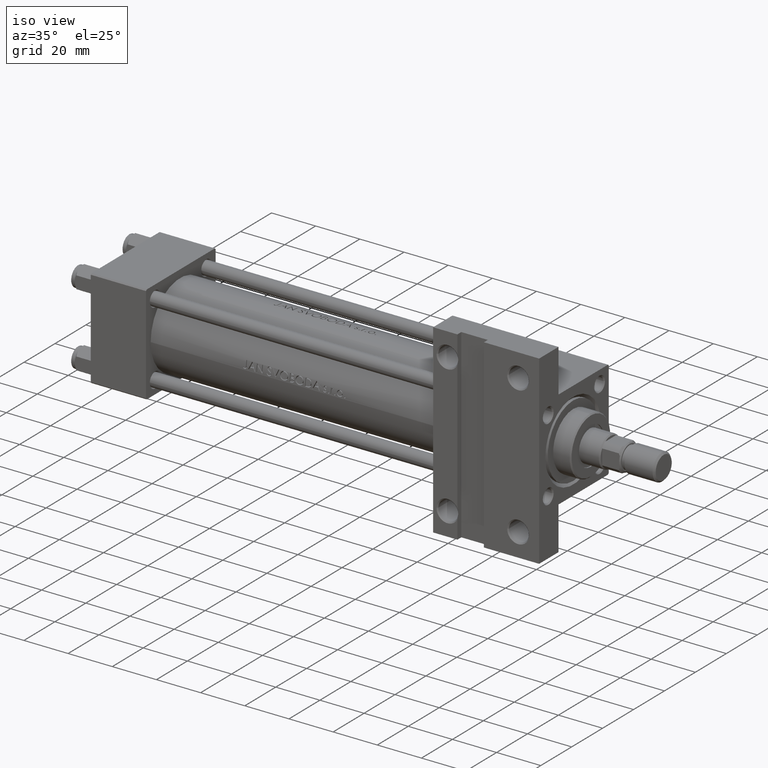
[diagram: clean part render]
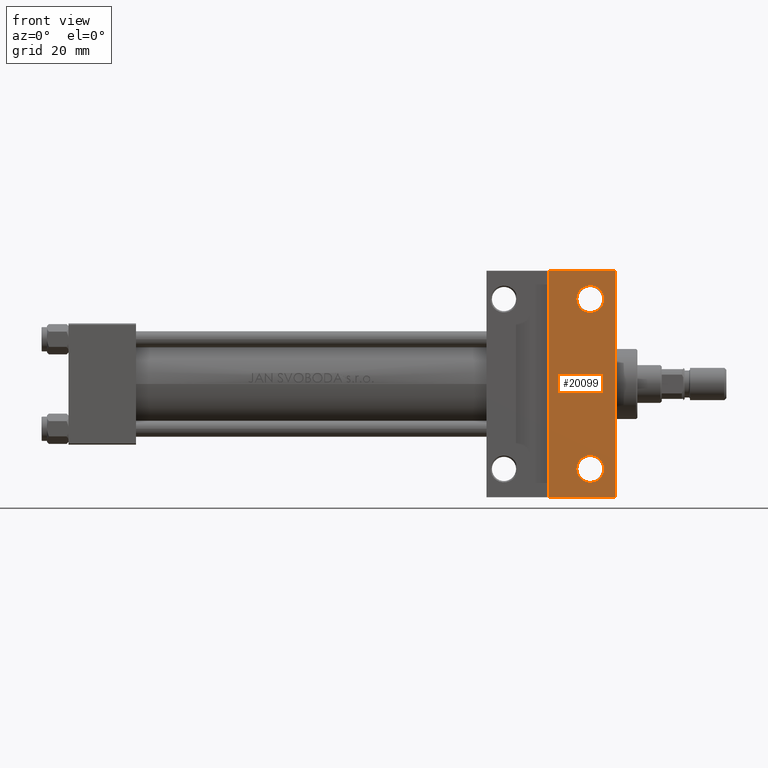
[diagram: tour spotlight — one face highlighted and labeled with its STEP entity id]
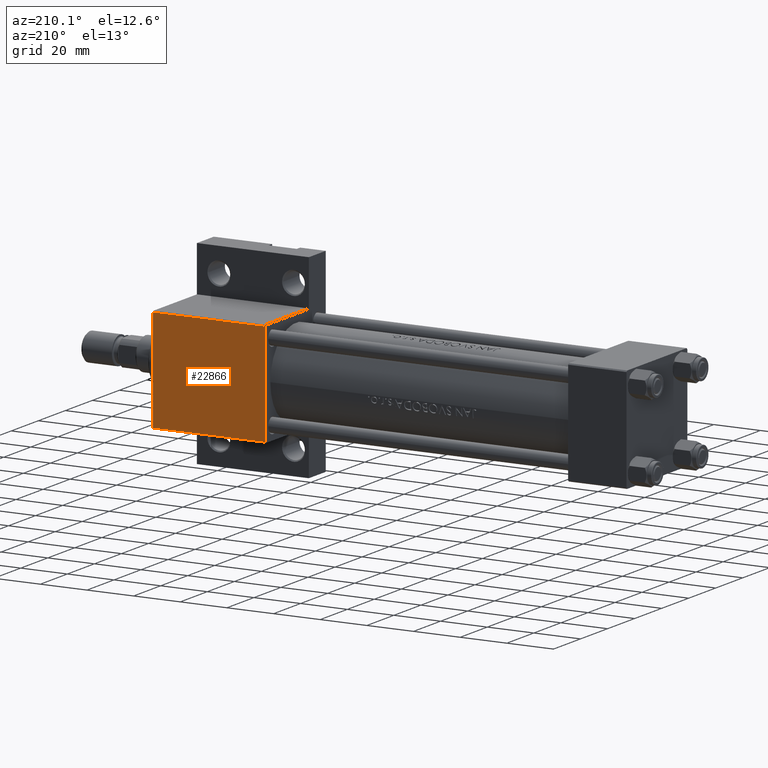
[diagram: tour spotlight — one face highlighted and labeled with its STEP entity id]
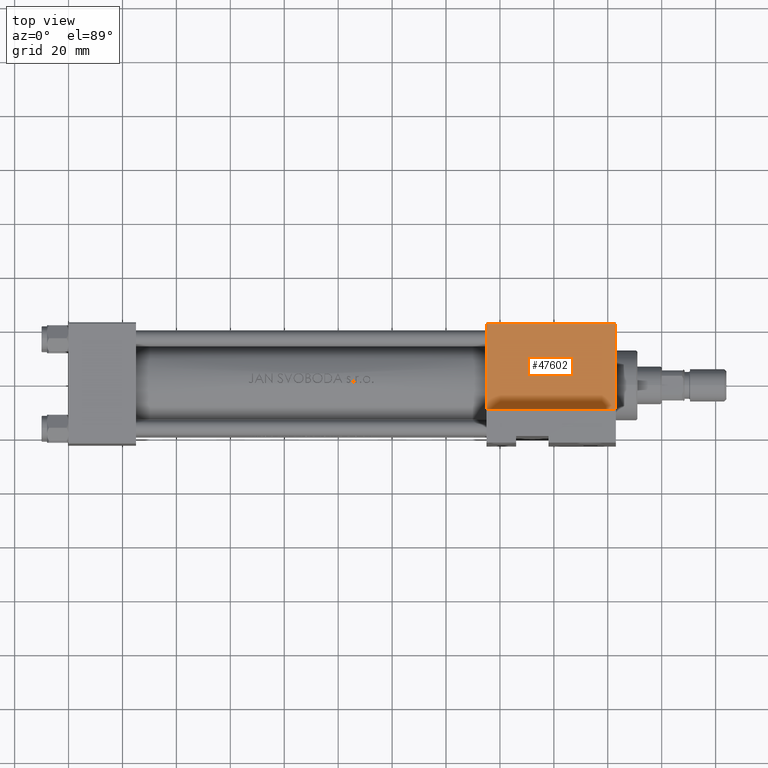
[diagram: tour spotlight — one face highlighted and labeled with its STEP entity id]
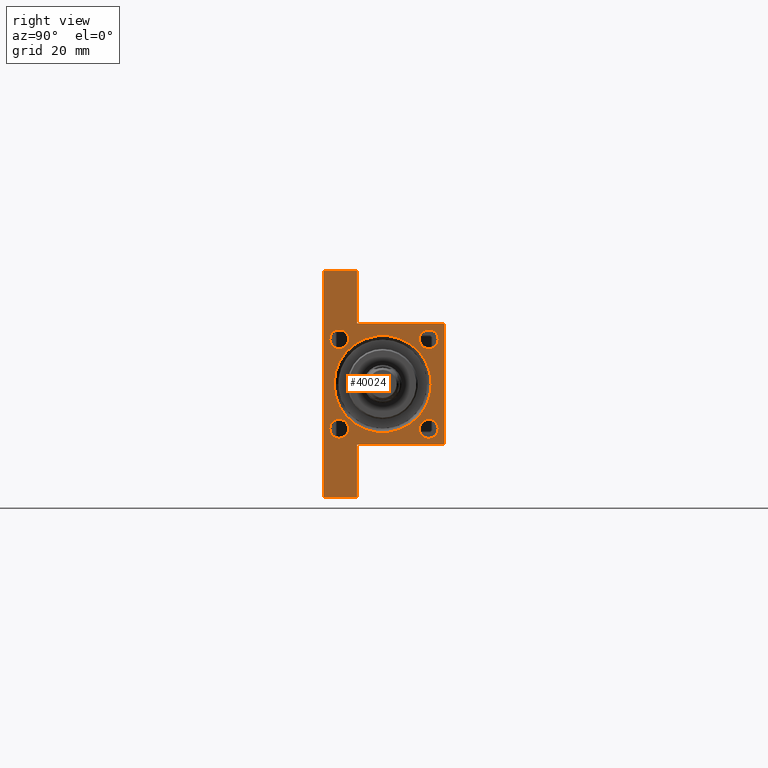
[diagram: tour spotlight — one face highlighted and labeled with its STEP entity id]
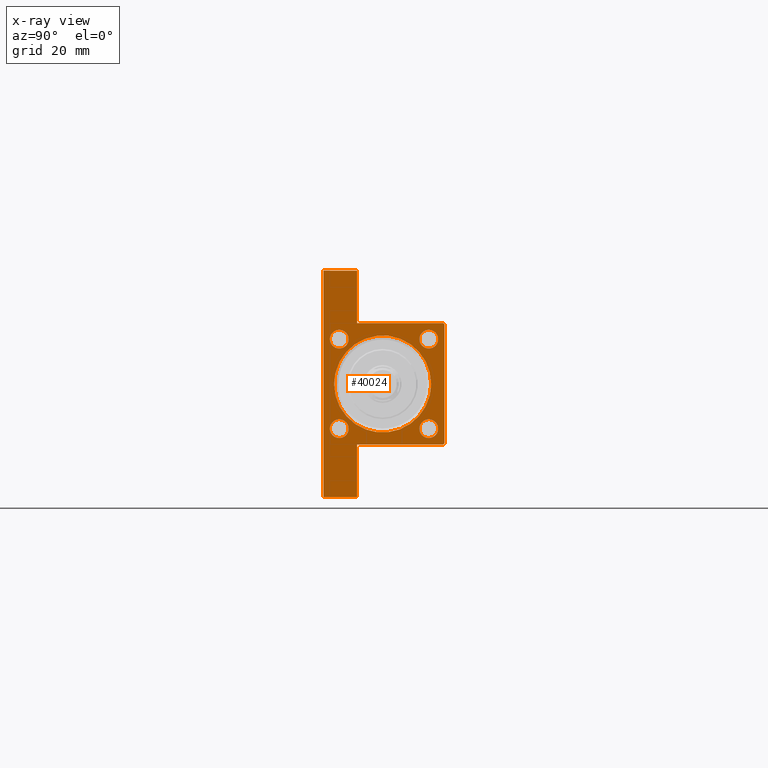
[diagram: x-ray of the same camera — body ghosted, this tour face saturated]
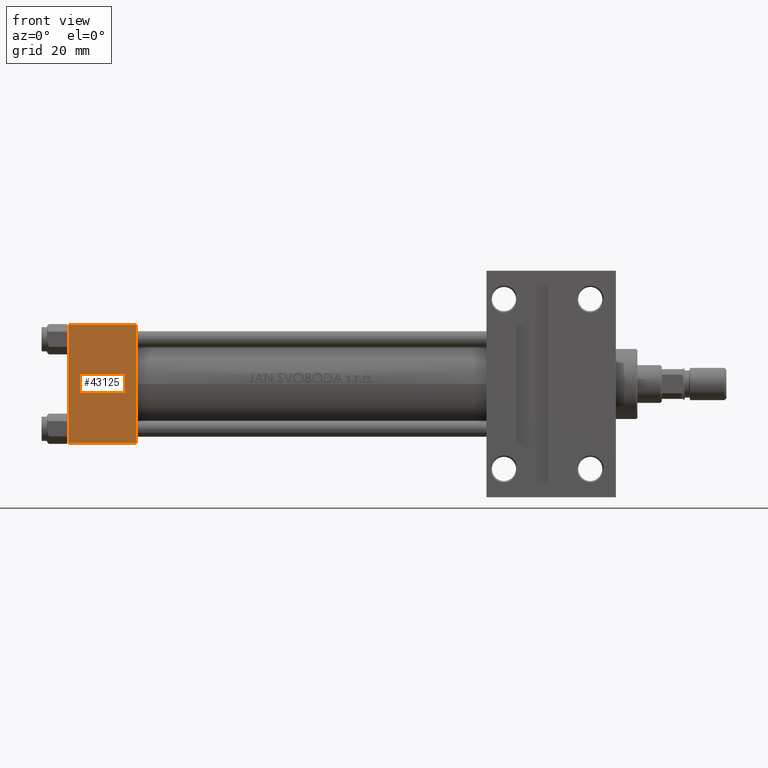
[diagram: tour spotlight — one face highlighted and labeled with its STEP entity id]
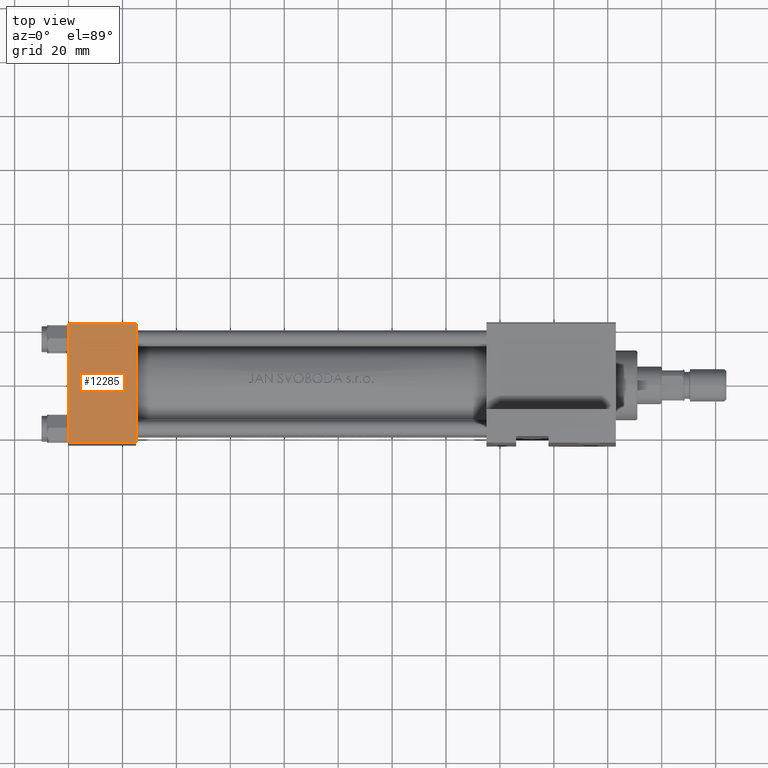
[diagram: tour spotlight — one face highlighted and labeled with its STEP entity id]
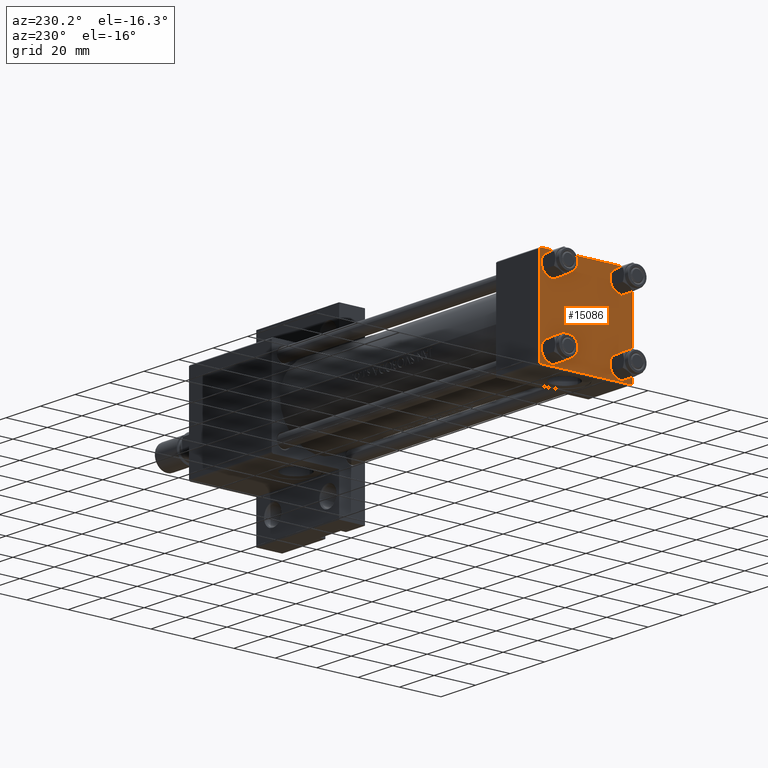
[diagram: tour spotlight — one face highlighted and labeled with its STEP entity id]
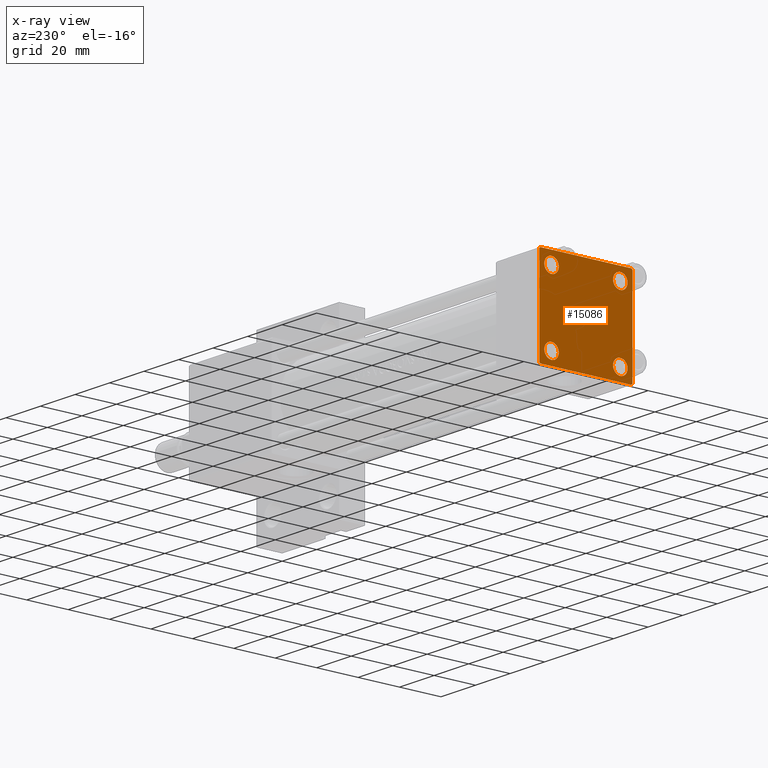
[diagram: x-ray of the same camera — body ghosted, this tour face saturated]
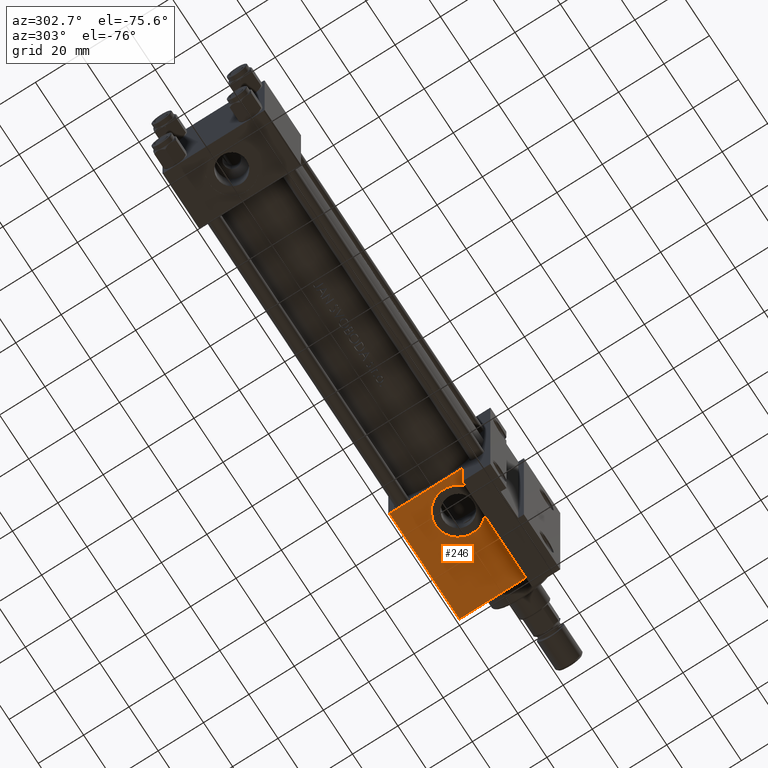
[diagram: tour spotlight — one face highlighted and labeled with its STEP entity id]
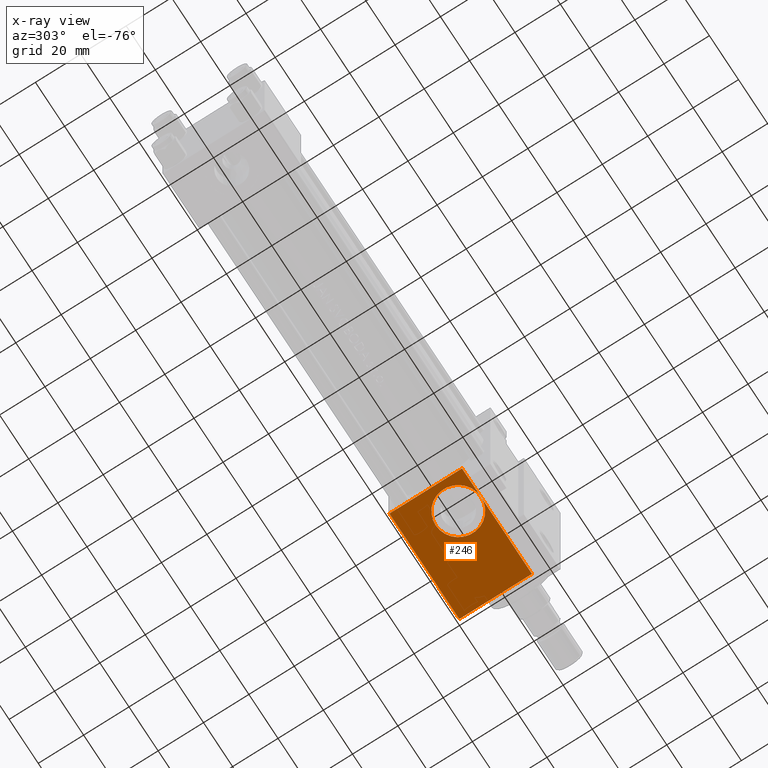
[diagram: x-ray of the same camera — body ghosted, this tour face saturated]
A machine part: a face-by-face anatomy tour. The part has 1116 B-rep faces; the first image is the clean iso view, then the 8 largest visible faces are spotlighted one at a time (largest first), each with its STEP entity span.

Face 1 — front view, entity #20099. In plain terms, the highlighted planar face has unit normal (0, -1, -0).
Definition (entity closure, byte-faithful):
#127 = DIRECTION ( 'NONE',  ( 0.000000000000000000, 1.000000000000000000, 0.000000000000000000 ) ) ;
#1091 = ORIENTED_EDGE ( 'NONE', *, *, #39831, .T. ) ;
#2030 = CARTESIAN_POINT ( 'NONE',  ( 193.5000000000000000, 31.50000000000000000, -22.49999999999999645 ) ) ;
#2298 = CARTESIAN_POINT ( 'NONE',  ( 178.0000000000000000, -42.00000000000000000, -22.50000000000000000 ) ) ;
#2853 = LINE ( 'NONE', #25515, #7318 ) ;
#2868 = DIRECTION ( 'NONE',  ( -1.000000000000000000, -0.000000000000000000, -0.000000000000000000 ) ) ;
#3366 = CARTESIAN_POINT ( 'NONE',  ( 203.0000000000000000, 22.50000000000000355, -22.49999999999999645 ) ) ;
#3801 = DIRECTION ( 'NONE',  ( 0.000000000000000000, 1.000000000000000000, 0.000000000000000000 ) ) ;
#5358 = EDGE_CURVE ( 'NONE', #27607, #28544, #26270, .T. ) ;
#5384 = FACE_BOUND ( 'NONE', #6989, .T. ) ;
#5619 = DIRECTION ( 'NONE',  ( 0.000000000000000000, 7.709882115452476934E-17, -1.000000000000000000 ) ) ;
#6302 = LINE ( 'NONE', #3366, #8809 ) ;
#6452 = ORIENTED_EDGE ( 'NONE', *, *, #18397, .T. ) ;
#6989 = EDGE_LOOP ( 'NONE', ( #17673, #1091 ) ) ;
#7318 = VECTOR ( 'NONE', #17720, 1000.000000000000000 ) ;
#7418 = VERTEX_POINT ( 'NONE', #26321 ) ;
#7436 = CARTESIAN_POINT ( 'NONE',  ( 193.5000000000000000, 31.50000000000000000, -22.49999999999999645 ) ) ;
#8809 = VECTOR ( 'NONE', #21152, 1000.000000000000000 ) ;
#9591 = DIRECTION ( 'NONE',  ( -0.000000000000000000, -7.709882115452476934E-17, 1.000000000000000000 ) ) ;
#10078 = DIRECTION ( 'NONE',  ( -0.000000000000000000, -1.000000000000000000, -0.000000000000000000 ) ) ;
#10086 = DIRECTION ( 'NONE',  ( 0.000000000000000000, 1.000000000000000000, 0.000000000000000000 ) ) ;
#10166 = LINE ( 'NONE', #40374, #33071 ) ;
#13381 = VERTEX_POINT ( 'NONE', #16413 ) ;
#13623 = CARTESIAN_POINT ( 'NONE',  ( 203.0000000000000000, 22.50000000000000355, -22.49999999999999645 ) ) ;
#13795 = CARTESIAN_POINT ( 'NONE',  ( 198.4995000000000118, 31.50000000000000000, -22.49999999999999645 ) ) ;
#16413 = CARTESIAN_POINT ( 'NONE',  ( 178.0000000000000000, -42.00000000000000000, -22.50000000000000000 ) ) ;
#16871 = CARTESIAN_POINT ( 'NONE',  ( 203.0000000000000000, 41.99999999999997868, -22.50000000000000000 ) ) ;
#16902 = DIRECTION ( 'NONE',  ( -0.000000000000000000, -7.709882115452476934E-17, 1.000000000000000000 ) ) ;
#16938 = CARTESIAN_POINT ( 'NONE',  ( 193.5000000000000000, -31.50000000000000000, -22.50000000000000000 ) ) ;
#17673 = ORIENTED_EDGE ( 'NONE', *, *, #29313, .T. ) ;
#17720 = DIRECTION ( 'NONE',  ( 1.000000000000000000, -2.891205793294679312E-16, 0.000000000000000000 ) ) ;
#18164 = DIRECTION ( 'NONE',  ( -0.000000000000000000, -7.709882115452476934E-17, 1.000000000000000000 ) ) ;
#18397 = EDGE_CURVE ( 'NONE', #41160, #42430, #6302, .T. ) ;
#18658 = CARTESIAN_POINT ( 'NONE',  ( 193.5000000000000000, -31.50000000000000000, -22.50000000000000000 ) ) ;
#19670 = CIRCLE ( 'NONE', #21215, 4.999500000000018041 ) ;
#19901 = ORIENTED_EDGE ( 'NONE', *, *, #43794, .T. ) ;
#20099 = ADVANCED_FACE ( 'NONE', ( #42648, #5384, #20243 ), #27775, .T. ) ;
#20243 = FACE_BOUND ( 'NONE', #29417, .T. ) ;
#20492 = EDGE_CURVE ( 'NONE', #31360, #41160, #2853, .T. ) ;
#20594 = AXIS2_PLACEMENT_3D ( 'NONE', #16938, #9591, #10086 ) ;
#21152 = DIRECTION ( 'NONE',  ( 0.000000000000000000, -1.000000000000000000, -7.709882115452476934E-17 ) ) ;
#21215 = AXIS2_PLACEMENT_3D ( 'NONE', #7436, #18164, #3801 ) ;
#21354 = CIRCLE ( 'NONE', #20594, 4.999500000000018041 ) ;
#23670 = AXIS2_PLACEMENT_3D ( 'NONE', #13623, #5619, #35560 ) ;
#23936 = AXIS2_PLACEMENT_3D ( 'NONE', #18658, #33490, #127 ) ;
#24084 = EDGE_CURVE ( 'NONE', #42430, #13381, #10166, .T. ) ;
#24372 = CARTESIAN_POINT ( 'NONE',  ( 198.4995000000000118, -31.50000000000000000, -22.50000000000000000 ) ) ;
#25515 = CARTESIAN_POINT ( 'NONE',  ( 155.0000000000000000, 41.99999999999999289, -22.50000000000000000 ) ) ;
#26270 = CIRCLE ( 'NONE', #23936, 4.999500000000018041 ) ;
#26321 = CARTESIAN_POINT ( 'NONE',  ( 188.5004999999999882, 31.50000000000000000, -22.49999999999999645 ) ) ;
#27251 = ORIENTED_EDGE ( 'NONE', *, *, #20492, .T. ) ;
#27607 = VERTEX_POINT ( 'NONE', #32448 ) ;
#27775 = PLANE ( 'NONE',  #23670 ) ;
#28544 = VERTEX_POINT ( 'NONE', #24372 ) ;
#29313 = EDGE_CURVE ( 'NONE', #7418, #35790, #37049, .T. ) ;
#29417 = EDGE_LOOP ( 'NONE', ( #31994, #19901 ) ) ;
#29563 = CARTESIAN_POINT ( 'NONE',  ( 178.0000000000000000, 41.99999999999999289, -22.50000000000000000 ) ) ;
#30394 = ORIENTED_EDGE ( 'NONE', *, *, #24084, .T. ) ;
#31360 = VERTEX_POINT ( 'NONE', #29563 ) ;
#31739 = DIRECTION ( 'NONE',  ( 0.000000000000000000, 1.000000000000000000, 0.000000000000000000 ) ) ;
#31994 = ORIENTED_EDGE ( 'NONE', *, *, #5358, .T. ) ;
#32448 = CARTESIAN_POINT ( 'NONE',  ( 188.5004999999999882, -31.50000000000000000, -22.50000000000000000 ) ) ;
#33071 = VECTOR ( 'NONE', #2868, 1000.000000000000000 ) ;
#33490 = DIRECTION ( 'NONE',  ( -0.000000000000000000, -7.709882115452476934E-17, 1.000000000000000000 ) ) ;
#35560 = DIRECTION ( 'NONE',  ( 0.000000000000000000, 1.000000000000000000, 7.709882115452476934E-17 ) ) ;
#35790 = VERTEX_POINT ( 'NONE', #13795 ) ;
#37049 = CIRCLE ( 'NONE', #47948, 4.999500000000018041 ) ;
#37499 = EDGE_LOOP ( 'NONE', ( #38018, #27251, #6452, #30394 ) ) ;
#38018 = ORIENTED_EDGE ( 'NONE', *, *, #40744, .F. ) ;
#39831 = EDGE_CURVE ( 'NONE', #35790, #7418, #19670, .T. ) ;
#40374 = CARTESIAN_POINT ( 'NONE',  ( 155.0000000000000000, -42.00000000000000711, -22.50000000000000000 ) ) ;
#40744 = EDGE_CURVE ( 'NONE', #31360, #13381, #42964, .T. ) ;
#41160 = VERTEX_POINT ( 'NONE', #16871 ) ;
#42430 = VERTEX_POINT ( 'NONE', #46270 ) ;
#42648 = FACE_OUTER_BOUND ( 'NONE', #37499, .T. ) ;
#42964 = LINE ( 'NONE', #2298, #46151 ) ;
#43794 = EDGE_CURVE ( 'NONE', #28544, #27607, #21354, .T. ) ;
#46151 = VECTOR ( 'NONE', #10078, 1000.000000000000000 ) ;
#46270 = CARTESIAN_POINT ( 'NONE',  ( 203.0000000000000000, -42.00000000000000711, -22.50000000000000000 ) ) ;
#47948 = AXIS2_PLACEMENT_3D ( 'NONE', #2030, #16902, #31739 ) ;

Face 2 — auxiliary view, entity #22866. In plain terms, the highlighted planar face has unit normal (0, -1, -0).
Definition (entity closure, byte-faithful):
#20 = CARTESIAN_POINT ( 'NONE',  ( 203.0000000000000000, -21.99999999999995381, 22.49999999999999289 ) ) ;
#141 = CARTESIAN_POINT ( 'NONE',  ( 203.0000000000000000, 22.00000000000000355, 22.50000000000000355 ) ) ;
#3388 = ORIENTED_EDGE ( 'NONE', *, *, #32663, .T. ) ;
#4145 = VERTEX_POINT ( 'NONE', #28700 ) ;
#5265 = CARTESIAN_POINT ( 'NONE',  ( 155.0000000000000000, 22.50000000000000355, 22.50000000000000355 ) ) ;
#5617 = LINE ( 'NONE', #30481, #17726 ) ;
#6060 = VECTOR ( 'NONE', #28923, 1000.000000000000000 ) ;
#6703 = EDGE_CURVE ( 'NONE', #35851, #42285, #40370, .T. ) ;
#9028 = VECTOR ( 'NONE', #19926, 1000.000000000000000 ) ;
#11240 = DIRECTION ( 'NONE',  ( 0.000000000000000000, 1.000000000000000000, 2.312964634635742957E-16 ) ) ;
#13546 = CARTESIAN_POINT ( 'NONE',  ( 155.0000000000000000, 22.00000000000000355, 22.50000000000000355 ) ) ;
#14014 = ORIENTED_EDGE ( 'NONE', *, *, #15396, .T. ) ;
#15396 = EDGE_CURVE ( 'NONE', #35851, #4145, #23816, .T. ) ;
#15869 = CARTESIAN_POINT ( 'NONE',  ( 203.0000000000000000, 22.50000000000000355, 22.50000000000000355 ) ) ;
#17726 = VECTOR ( 'NONE', #38749, 1000.000000000000000 ) ;
#19926 = DIRECTION ( 'NONE',  ( -1.000000000000000000, 0.000000000000000000, 0.000000000000000000 ) ) ;
#22105 = EDGE_LOOP ( 'NONE', ( #30348, #14014, #3388, #42904 ) ) ;
#22866 = ADVANCED_FACE ( 'NONE', ( #40963 ), #45589, .F. ) ;
#23816 = LINE ( 'NONE', #13546, #9028 ) ;
#25569 = CARTESIAN_POINT ( 'NONE',  ( 155.0000000000000000, -21.99999999999995381, 22.49999999999999289 ) ) ;
#25754 = VERTEX_POINT ( 'NONE', #25569 ) ;
#28440 = CARTESIAN_POINT ( 'NONE',  ( 203.0000000000000000, 22.50000000000000355, 22.50000000000000355 ) ) ;
#28700 = CARTESIAN_POINT ( 'NONE',  ( 155.0000000000000000, 22.00000000000000355, 22.50000000000000355 ) ) ;
#28923 = DIRECTION ( 'NONE',  ( 0.000000000000000000, -1.000000000000000000, -2.312964634635742957E-16 ) ) ;
#29153 = AXIS2_PLACEMENT_3D ( 'NONE', #15869, #30263, #11240 ) ;
#30263 = DIRECTION ( 'NONE',  ( 0.000000000000000000, 2.312964634635742957E-16, -1.000000000000000000 ) ) ;
#30348 = ORIENTED_EDGE ( 'NONE', *, *, #6703, .F. ) ;
#30481 = CARTESIAN_POINT ( 'NONE',  ( 203.0000000000000000, -21.99999999999996803, 22.49999999999999289 ) ) ;
#32663 = EDGE_CURVE ( 'NONE', #4145, #25754, #45063, .T. ) ;
#35851 = VERTEX_POINT ( 'NONE', #141 ) ;
#37252 = EDGE_CURVE ( 'NONE', #25754, #42285, #5617, .T. ) ;
#37739 = DIRECTION ( 'NONE',  ( 0.000000000000000000, -1.000000000000000000, -2.312964634635742957E-16 ) ) ;
#38749 = DIRECTION ( 'NONE',  ( 1.000000000000000000, 0.000000000000000000, 0.000000000000000000 ) ) ;
#40370 = LINE ( 'NONE', #28440, #6060 ) ;
#40963 = FACE_OUTER_BOUND ( 'NONE', #22105, .T. ) ;
#42285 = VERTEX_POINT ( 'NONE', #20 ) ;
#42904 = ORIENTED_EDGE ( 'NONE', *, *, #37252, .T. ) ;
#43387 = VECTOR ( 'NONE', #37739, 1000.000000000000000 ) ;
#45063 = LINE ( 'NONE', #5265, #43387 ) ;
#45589 = PLANE ( 'NONE',  #29153 ) ;

Face 3 — top view, entity #47602. In plain terms, the highlighted planar face has unit normal (0, 0, -1).
Definition (entity closure, byte-faithful):
#962 = DIRECTION ( 'NONE',  ( 0.000000000000000000, -0.000000000000000000, 1.000000000000000000 ) ) ;
#3619 = VECTOR ( 'NONE', #42262, 1000.000000000000000 ) ;
#4013 = LINE ( 'NONE', #36881, #23069 ) ;
#5005 = CARTESIAN_POINT ( 'NONE',  ( 155.0000000000000000, -22.50000000000000000, -9.999999999999998224 ) ) ;
#6638 = ORIENTED_EDGE ( 'NONE', *, *, #10447, .T. ) ;
#8224 = DIRECTION ( 'NONE',  ( 0.000000000000000000, 0.000000000000000000, -1.000000000000000000 ) ) ;
#9849 = LINE ( 'NONE', #43470, #42559 ) ;
#10447 = EDGE_CURVE ( 'NONE', #23224, #40762, #15042, .T. ) ;
#15042 = LINE ( 'NONE', #15553, #44979 ) ;
#15553 = CARTESIAN_POINT ( 'NONE',  ( 155.0000000000000000, -22.49999999999999645, 22.49999999999999289 ) ) ;
#15701 = EDGE_CURVE ( 'NONE', #40762, #24287, #27187, .T. ) ;
#16050 = AXIS2_PLACEMENT_3D ( 'NONE', #45085, #30450, #962 ) ;
#16471 = CARTESIAN_POINT ( 'NONE',  ( 203.0000000000000000, -22.49999999999999645, -9.999999999999980460 ) ) ;
#22166 = ORIENTED_EDGE ( 'NONE', *, *, #15701, .T. ) ;
#22430 = ORIENTED_EDGE ( 'NONE', *, *, #28982, .T. ) ;
#22900 = CARTESIAN_POINT ( 'NONE',  ( 155.0000000000000000, -22.49999999999999645, 21.99999999999996447 ) ) ;
#23069 = VECTOR ( 'NONE', #44447, 1000.000000000000000 ) ;
#23135 = VERTEX_POINT ( 'NONE', #37743 ) ;
#23224 = VERTEX_POINT ( 'NONE', #22900 ) ;
#24287 = VERTEX_POINT ( 'NONE', #16471 ) ;
#24721 = DIRECTION ( 'NONE',  ( 0.000000000000000000, 0.000000000000000000, -1.000000000000000000 ) ) ;
#27187 = LINE ( 'NONE', #5005, #3619 ) ;
#28017 = EDGE_LOOP ( 'NONE', ( #34215, #22430, #6638, #22166 ) ) ;
#28982 = EDGE_CURVE ( 'NONE', #23135, #23224, #4013, .T. ) ;
#30450 = DIRECTION ( 'NONE',  ( -0.000000000000000000, 1.000000000000000000, 0.000000000000000000 ) ) ;
#31948 = EDGE_CURVE ( 'NONE', #23135, #24287, #9849, .T. ) ;
#33854 = PLANE ( 'NONE',  #16050 ) ;
#34215 = ORIENTED_EDGE ( 'NONE', *, *, #31948, .F. ) ;
#36881 = CARTESIAN_POINT ( 'NONE',  ( 203.0000000000000000, -22.49999999999999645, 21.99999999999996447 ) ) ;
#37022 = FACE_OUTER_BOUND ( 'NONE', #28017, .T. ) ;
#37743 = CARTESIAN_POINT ( 'NONE',  ( 203.0000000000000000, -22.49999999999999645, 21.99999999999996447 ) ) ;
#40762 = VERTEX_POINT ( 'NONE', #47357 ) ;
#42262 = DIRECTION ( 'NONE',  ( 1.000000000000000000, -1.445602896647339656E-16, 0.000000000000000000 ) ) ;
#42559 = VECTOR ( 'NONE', #24721, 1000.000000000000000 ) ;
#43470 = CARTESIAN_POINT ( 'NONE',  ( 203.0000000000000000, -22.49999999999999645, 22.49999999999999289 ) ) ;
#44447 = DIRECTION ( 'NONE',  ( -1.000000000000000000, 0.000000000000000000, 0.000000000000000000 ) ) ;
#44979 = VECTOR ( 'NONE', #8224, 1000.000000000000000 ) ;
#45085 = CARTESIAN_POINT ( 'NONE',  ( 203.0000000000000000, -22.49999999999999645, 22.49999999999999289 ) ) ;
#47357 = CARTESIAN_POINT ( 'NONE',  ( 155.0000000000000000, -22.50000000000000000, -9.999999999999998224 ) ) ;
#47602 = ADVANCED_FACE ( 'NONE', ( #37022 ), #33854, .F. ) ;

Face 4 — right view, entity #40024. An x-ray twin of the same camera follows (body ghosted, this face saturated) — the face is partly hidden behind the body. In plain terms, the highlighted planar face has unit normal (-1, 0, -0).
Definition (entity closure, byte-faithful):
#20 = CARTESIAN_POINT ( 'NONE',  ( 203.0000000000000000, -21.99999999999995381, 22.49999999999999289 ) ) ;
#141 = CARTESIAN_POINT ( 'NONE',  ( 203.0000000000000000, 22.00000000000000355, 22.50000000000000355 ) ) ;
#230 = ORIENTED_EDGE ( 'NONE', *, *, #22441, .T. ) ;
#370 = AXIS2_PLACEMENT_3D ( 'NONE', #30149, #12349, #45962 ) ;
#517 = DIRECTION ( 'NONE',  ( -1.000000000000000000, 0.000000000000000000, -0.000000000000000000 ) ) ;
#677 = ORIENTED_EDGE ( 'NONE', *, *, #4912, .T. ) ;
#748 = DIRECTION ( 'NONE',  ( 0.000000000000000000, 0.000000000000000000, 1.000000000000000000 ) ) ;
#820 = CARTESIAN_POINT ( 'NONE',  ( 203.0000000000000000, -16.59999999999999787, 16.59999999999999787 ) ) ;
#1254 = CIRCLE ( 'NONE', #38588, 3.500000000000003109 ) ;
#1384 = EDGE_CURVE ( 'NONE', #2815, #46189, #31027, .T. ) ;
#1616 = ORIENTED_EDGE ( 'NONE', *, *, #37278, .F. ) ;
#1901 = DIRECTION ( 'NONE',  ( 0.000000000000000000, 0.000000000000000000, 1.000000000000000000 ) ) ;
#1939 = DIRECTION ( 'NONE',  ( 0.000000000000000000, 0.000000000000000000, 1.000000000000000000 ) ) ;
#2442 = CARTESIAN_POINT ( 'NONE',  ( 203.0000000000000000, -16.59999999999999787, 20.10000000000000142 ) ) ;
#2815 = VERTEX_POINT ( 'NONE', #22090 ) ;
#2865 = EDGE_LOOP ( 'NONE', ( #27196, #41154 ) ) ;
#3016 = CARTESIAN_POINT ( 'NONE',  ( 203.0000000000000000, 16.59999999999999787, 16.60000000000000497 ) ) ;
#3323 = CARTESIAN_POINT ( 'NONE',  ( 203.0000000000000000, -16.60000000000000497, -13.10000000000000142 ) ) ;
#3366 = CARTESIAN_POINT ( 'NONE',  ( 203.0000000000000000, 22.50000000000000355, -22.49999999999999645 ) ) ;
#3550 = VERTEX_POINT ( 'NONE', #26381 ) ;
#3676 = EDGE_LOOP ( 'NONE', ( #25651, #15019 ) ) ;
#3682 = AXIS2_PLACEMENT_3D ( 'NONE', #18054, #39723, #17320 ) ;
#3863 = CARTESIAN_POINT ( 'NONE',  ( 203.0000000000000000, -42.00000000000000711, -9.999999999999998224 ) ) ;
#4134 = CARTESIAN_POINT ( 'NONE',  ( 203.0000000000000000, -42.00000000000000711, -9.999999999999998224 ) ) ;
#4363 = CIRCLE ( 'NONE', #10555, 3.500000000000003109 ) ;
#4530 = EDGE_LOOP ( 'NONE', ( #677, #230 ) ) ;
#4677 = DIRECTION ( 'NONE',  ( 0.000000000000000000, 0.000000000000000000, -1.000000000000000000 ) ) ;
#4834 = CARTESIAN_POINT ( 'NONE',  ( 203.0000000000000000, -16.60000000000000497, -16.60000000000000497 ) ) ;
#4912 = EDGE_CURVE ( 'NONE', #8469, #16544, #44132, .T. ) ;
#5704 = FACE_BOUND ( 'NONE', #17101, .T. ) ;
#5792 = ORIENTED_EDGE ( 'NONE', *, *, #16234, .T. ) ;
#6060 = VECTOR ( 'NONE', #28923, 1000.000000000000000 ) ;
#6302 = LINE ( 'NONE', #3366, #8809 ) ;
#6620 = CARTESIAN_POINT ( 'NONE',  ( 203.0000000000000000, 22.00000000000000355, 22.50000000000000355 ) ) ;
#6624 = EDGE_CURVE ( 'NONE', #17878, #26231, #34834, .T. ) ;
#6703 = EDGE_CURVE ( 'NONE', #35851, #42285, #40370, .T. ) ;
#7517 = DIRECTION ( 'NONE',  ( 0.000000000000000000, 0.000000000000000000, -1.000000000000000000 ) ) ;
#7526 = DIRECTION ( 'NONE',  ( 0.000000000000000000, -1.000000000000000000, 0.000000000000000000 ) ) ;
#8365 = DIRECTION ( 'NONE',  ( -1.000000000000000000, 0.000000000000000000, -0.000000000000000000 ) ) ;
#8469 = VERTEX_POINT ( 'NONE', #41183 ) ;
#8492 = DIRECTION ( 'NONE',  ( -1.000000000000000000, 0.000000000000000000, -0.000000000000000000 ) ) ;
#8493 = CARTESIAN_POINT ( 'NONE',  ( 203.0000000000000000, -16.59999999999999787, 13.09999999999999432 ) ) ;
#8705 = DIRECTION ( 'NONE',  ( 0.000000000000000000, 0.000000000000000000, 1.000000000000000000 ) ) ;
#8809 = VECTOR ( 'NONE', #21152, 1000.000000000000000 ) ;
#8903 = CARTESIAN_POINT ( 'NONE',  ( 203.0000000000000000, 22.50000000000000355, 22.00000000000000355 ) ) ;
#9106 = VERTEX_POINT ( 'NONE', #2442 ) ;
#9785 = CARTESIAN_POINT ( 'NONE',  ( 203.0000000000000000, 22.49999999999997158, -9.999999999999998224 ) ) ;
#9849 = LINE ( 'NONE', #43470, #42559 ) ;
#9925 = DIRECTION ( 'NONE',  ( -1.000000000000000000, 0.000000000000000000, -0.000000000000000000 ) ) ;
#10555 = AXIS2_PLACEMENT_3D ( 'NONE', #820, #8365, #23241 ) ;
#10804 = FACE_BOUND ( 'NONE', #4530, .T. ) ;
#11005 = DIRECTION ( 'NONE',  ( 0.000000000000000000, -0.7071067811865474617, 0.7071067811865474617 ) ) ;
#11029 = FACE_OUTER_BOUND ( 'NONE', #23304, .T. ) ;
#11400 = DIRECTION ( 'NONE',  ( -0.000000000000000000, -1.000000000000000000, -0.000000000000000000 ) ) ;
#11619 = DIRECTION ( 'NONE',  ( 0.000000000000000000, 0.000000000000000000, -1.000000000000000000 ) ) ;
#11701 = DIRECTION ( 'NONE',  ( -1.000000000000000000, 0.000000000000000000, -0.000000000000000000 ) ) ;
#12228 = EDGE_CURVE ( 'NONE', #46021, #9106, #38480, .T. ) ;
#12239 = CARTESIAN_POINT ( 'NONE',  ( 203.0000000000000000, 16.59999999999999787, 13.10000000000000142 ) ) ;
#12335 = EDGE_LOOP ( 'NONE', ( #47667, #24607 ) ) ;
#12349 = DIRECTION ( 'NONE',  ( -1.000000000000000000, 0.000000000000000000, -0.000000000000000000 ) ) ;
#13205 = VERTEX_POINT ( 'NONE', #8903 ) ;
#13456 = AXIS2_PLACEMENT_3D ( 'NONE', #3016, #26401, #47582 ) ;
#13559 = DIRECTION ( 'NONE',  ( 0.000000000000000000, 0.000000000000000000, 1.000000000000000000 ) ) ;
#14667 = VECTOR ( 'NONE', #7526, 1000.000000000000000 ) ;
#14760 = EDGE_CURVE ( 'NONE', #9106, #46021, #4363, .T. ) ;
#14783 = VERTEX_POINT ( 'NONE', #9785 ) ;
#15019 = ORIENTED_EDGE ( 'NONE', *, *, #14760, .T. ) ;
#15043 = VECTOR ( 'NONE', #11400, 1000.000000000000000 ) ;
#15081 = EDGE_CURVE ( 'NONE', #46189, #2815, #1254, .T. ) ;
#15171 = EDGE_CURVE ( 'NONE', #21255, #42430, #32361, .T. ) ;
#15745 = CARTESIAN_POINT ( 'NONE',  ( 203.0000000000000000, 16.59999999999999787, 20.10000000000000853 ) ) ;
#16234 = EDGE_CURVE ( 'NONE', #42285, #23135, #16505, .T. ) ;
#16471 = CARTESIAN_POINT ( 'NONE',  ( 203.0000000000000000, -22.49999999999999645, -9.999999999999980460 ) ) ;
#16505 = LINE ( 'NONE', #31121, #38624 ) ;
#16544 = VERTEX_POINT ( 'NONE', #18866 ) ;
#16711 = VECTOR ( 'NONE', #11005, 1000.000000000000114 ) ;
#16871 = CARTESIAN_POINT ( 'NONE',  ( 203.0000000000000000, 41.99999999999997868, -22.50000000000000000 ) ) ;
#16920 = FACE_BOUND ( 'NONE', #3676, .T. ) ;
#17101 = EDGE_LOOP ( 'NONE', ( #38444, #40317 ) ) ;
#17320 = DIRECTION ( 'NONE',  ( 0.000000000000000000, 0.000000000000000000, 1.000000000000000000 ) ) ;
#17878 = VERTEX_POINT ( 'NONE', #12239 ) ;
#17927 = DIRECTION ( 'NONE',  ( -1.000000000000000000, 0.000000000000000000, -0.000000000000000000 ) ) ;
#18054 = CARTESIAN_POINT ( 'NONE',  ( 203.0000000000000000, 16.59999999999999787, -16.60000000000000497 ) ) ;
#18397 = EDGE_CURVE ( 'NONE', #41160, #42430, #6302, .T. ) ;
#18614 = EDGE_CURVE ( 'NONE', #24287, #21255, #37960, .T. ) ;
#18866 = CARTESIAN_POINT ( 'NONE',  ( 203.0000000000000000, 2.204364238465241344E-15, 17.50000000000004619 ) ) ;
#19718 = CARTESIAN_POINT ( 'NONE',  ( 203.0000000000000000, 0.000000000000000000, -0.4999999999999967804 ) ) ;
#20419 = ORIENTED_EDGE ( 'NONE', *, *, #46975, .F. ) ;
#20630 = ORIENTED_EDGE ( 'NONE', *, *, #6703, .T. ) ;
#21116 = DIRECTION ( 'NONE',  ( -0.000000000000000000, -0.7071067811865474617, -0.7071067811865474617 ) ) ;
#21152 = DIRECTION ( 'NONE',  ( 0.000000000000000000, -1.000000000000000000, -7.709882115452476934E-17 ) ) ;
#21255 = VERTEX_POINT ( 'NONE', #4134 ) ;
#22090 = CARTESIAN_POINT ( 'NONE',  ( 203.0000000000000000, -16.60000000000000497, -20.10000000000000853 ) ) ;
#22441 = EDGE_CURVE ( 'NONE', #16544, #8469, #47058, .T. ) ;
#22500 = AXIS2_PLACEMENT_3D ( 'NONE', #4834, #8492, #8705 ) ;
#22751 = EDGE_CURVE ( 'NONE', #13205, #35851, #29280, .T. ) ;
#23135 = VERTEX_POINT ( 'NONE', #37743 ) ;
#23241 = DIRECTION ( 'NONE',  ( 0.000000000000000000, 0.000000000000000000, 1.000000000000000000 ) ) ;
#23304 = EDGE_LOOP ( 'NONE', ( #1616, #41363, #20630, #5792, #37520, #31195, #25972, #37665, #20419, #40335 ) ) ;
#23642 = CARTESIAN_POINT ( 'NONE',  ( 203.0000000000000000, 22.50000000000000355, 22.50000000000000355 ) ) ;
#24287 = VERTEX_POINT ( 'NONE', #16471 ) ;
#24607 = ORIENTED_EDGE ( 'NONE', *, *, #15081, .T. ) ;
#24721 = DIRECTION ( 'NONE',  ( 0.000000000000000000, 0.000000000000000000, -1.000000000000000000 ) ) ;
#25167 = FACE_BOUND ( 'NONE', #12335, .T. ) ;
#25651 = ORIENTED_EDGE ( 'NONE', *, *, #12228, .T. ) ;
#25972 = ORIENTED_EDGE ( 'NONE', *, *, #15171, .T. ) ;
#26231 = VERTEX_POINT ( 'NONE', #15745 ) ;
#26381 = CARTESIAN_POINT ( 'NONE',  ( 203.0000000000000000, 16.59999999999999787, -13.10000000000000142 ) ) ;
#26401 = DIRECTION ( 'NONE',  ( -1.000000000000000000, 0.000000000000000000, -0.000000000000000000 ) ) ;
#26712 = CARTESIAN_POINT ( 'NONE',  ( 203.0000000000000000, 41.99999999999997868, -9.999999999999998224 ) ) ;
#27030 = DIRECTION ( 'NONE',  ( -1.000000000000000000, 0.000000000000000000, -0.000000000000000000 ) ) ;
#27080 = AXIS2_PLACEMENT_3D ( 'NONE', #39167, #27030, #1901 ) ;
#27196 = ORIENTED_EDGE ( 'NONE', *, *, #48157, .T. ) ;
#28162 = DIRECTION ( 'NONE',  ( 0.000000000000000000, 0.000000000000000000, 1.000000000000000000 ) ) ;
#28197 = CARTESIAN_POINT ( 'NONE',  ( 203.0000000000000000, -16.59999999999999787, 16.59999999999999787 ) ) ;
#28440 = CARTESIAN_POINT ( 'NONE',  ( 203.0000000000000000, 22.50000000000000355, 22.50000000000000355 ) ) ;
#28923 = DIRECTION ( 'NONE',  ( 0.000000000000000000, -1.000000000000000000, -2.312964634635742957E-16 ) ) ;
#29010 = CIRCLE ( 'NONE', #13456, 3.500000000000003109 ) ;
#29280 = LINE ( 'NONE', #6620, #16711 ) ;
#30041 = PLANE ( 'NONE',  #37573 ) ;
#30130 = LINE ( 'NONE', #26712, #45575 ) ;
#30149 = CARTESIAN_POINT ( 'NONE',  ( 203.0000000000000000, 0.000000000000000000, -0.4999999999999967804 ) ) ;
#31027 = CIRCLE ( 'NONE', #22500, 3.500000000000003109 ) ;
#31121 = CARTESIAN_POINT ( 'NONE',  ( 203.0000000000000000, -22.49999999999999645, 21.99999999999996447 ) ) ;
#31195 = ORIENTED_EDGE ( 'NONE', *, *, #18614, .T. ) ;
#31948 = EDGE_CURVE ( 'NONE', #23135, #24287, #9849, .T. ) ;
#32024 = VERTEX_POINT ( 'NONE', #44431 ) ;
#32361 = LINE ( 'NONE', #44064, #34685 ) ;
#33876 = CARTESIAN_POINT ( 'NONE',  ( 203.0000000000000000, -16.60000000000000497, -16.60000000000000497 ) ) ;
#34193 = EDGE_CURVE ( 'NONE', #3550, #32024, #45686, .T. ) ;
#34685 = VECTOR ( 'NONE', #7517, 1000.000000000000000 ) ;
#34737 = AXIS2_PLACEMENT_3D ( 'NONE', #46686, #17927, #28162 ) ;
#34834 = CIRCLE ( 'NONE', #27080, 3.500000000000003109 ) ;
#34915 = VERTEX_POINT ( 'NONE', #46917 ) ;
#35851 = VERTEX_POINT ( 'NONE', #141 ) ;
#36370 = DIRECTION ( 'NONE',  ( -0.000000000000000000, 0.000000000000000000, 1.000000000000000000 ) ) ;
#36382 = VECTOR ( 'NONE', #4677, 1000.000000000000000 ) ;
#37278 = EDGE_CURVE ( 'NONE', #13205, #14783, #42391, .T. ) ;
#37408 = EDGE_CURVE ( 'NONE', #34915, #14783, #40168, .T. ) ;
#37520 = ORIENTED_EDGE ( 'NONE', *, *, #31948, .T. ) ;
#37573 = AXIS2_PLACEMENT_3D ( 'NONE', #44648, #48071, #36370 ) ;
#37665 = ORIENTED_EDGE ( 'NONE', *, *, #18397, .F. ) ;
#37735 = AXIS2_PLACEMENT_3D ( 'NONE', #28197, #9925, #13559 ) ;
#37743 = CARTESIAN_POINT ( 'NONE',  ( 203.0000000000000000, -22.49999999999999645, 21.99999999999996447 ) ) ;
#37960 = LINE ( 'NONE', #3863, #15043 ) ;
#38444 = ORIENTED_EDGE ( 'NONE', *, *, #6624, .T. ) ;
#38480 = CIRCLE ( 'NONE', #37735, 3.500000000000003109 ) ;
#38588 = AXIS2_PLACEMENT_3D ( 'NONE', #33876, #517, #1939 ) ;
#38624 = VECTOR ( 'NONE', #21116, 1000.000000000000114 ) ;
#39167 = CARTESIAN_POINT ( 'NONE',  ( 203.0000000000000000, 16.59999999999999787, 16.60000000000000497 ) ) ;
#39723 = DIRECTION ( 'NONE',  ( -1.000000000000000000, 0.000000000000000000, -0.000000000000000000 ) ) ;
#40011 = FACE_BOUND ( 'NONE', #2865, .T. ) ;
#40024 = ADVANCED_FACE ( 'NONE', ( #5704, #16920, #25167, #40011, #10804, #11029 ), #30041, .F. ) ;
#40037 = EDGE_CURVE ( 'NONE', #26231, #17878, #29010, .T. ) ;
#40168 = LINE ( 'NONE', #43103, #14667 ) ;
#40317 = ORIENTED_EDGE ( 'NONE', *, *, #40037, .T. ) ;
#40335 = ORIENTED_EDGE ( 'NONE', *, *, #37408, .T. ) ;
#40370 = LINE ( 'NONE', #28440, #6060 ) ;
#41154 = ORIENTED_EDGE ( 'NONE', *, *, #34193, .T. ) ;
#41160 = VERTEX_POINT ( 'NONE', #16871 ) ;
#41183 = CARTESIAN_POINT ( 'NONE',  ( 203.0000000000000000, 0.000000000000000000, -18.50000000000003908 ) ) ;
#41363 = ORIENTED_EDGE ( 'NONE', *, *, #22751, .T. ) ;
#41809 = AXIS2_PLACEMENT_3D ( 'NONE', #19718, #11701, #748 ) ;
#42285 = VERTEX_POINT ( 'NONE', #20 ) ;
#42391 = LINE ( 'NONE', #23642, #36382 ) ;
#42430 = VERTEX_POINT ( 'NONE', #46270 ) ;
#42559 = VECTOR ( 'NONE', #24721, 1000.000000000000000 ) ;
#43103 = CARTESIAN_POINT ( 'NONE',  ( 203.0000000000000000, 41.99999999999997868, -9.999999999999998224 ) ) ;
#43470 = CARTESIAN_POINT ( 'NONE',  ( 203.0000000000000000, -22.49999999999999645, 22.49999999999999289 ) ) ;
#44064 = CARTESIAN_POINT ( 'NONE',  ( 203.0000000000000000, -42.00000000000000711, -9.999999999999998224 ) ) ;
#44132 = CIRCLE ( 'NONE', #41809, 18.00000000000004263 ) ;
#44431 = CARTESIAN_POINT ( 'NONE',  ( 203.0000000000000000, 16.59999999999999787, -20.10000000000000853 ) ) ;
#44648 = CARTESIAN_POINT ( 'NONE',  ( 203.0000000000000000, 0.000000000000000000, 0.000000000000000000 ) ) ;
#45575 = VECTOR ( 'NONE', #11619, 1000.000000000000000 ) ;
#45686 = CIRCLE ( 'NONE', #3682, 3.500000000000003109 ) ;
#45962 = DIRECTION ( 'NONE',  ( 0.000000000000000000, 0.000000000000000000, 1.000000000000000000 ) ) ;
#46021 = VERTEX_POINT ( 'NONE', #8493 ) ;
#46189 = VERTEX_POINT ( 'NONE', #3323 ) ;
#46270 = CARTESIAN_POINT ( 'NONE',  ( 203.0000000000000000, -42.00000000000000711, -22.50000000000000000 ) ) ;
#46686 = CARTESIAN_POINT ( 'NONE',  ( 203.0000000000000000, 16.59999999999999787, -16.60000000000000497 ) ) ;
#46917 = CARTESIAN_POINT ( 'NONE',  ( 203.0000000000000000, 41.99999999999997868, -9.999999999999998224 ) ) ;
#46975 = EDGE_CURVE ( 'NONE', #34915, #41160, #30130, .T. ) ;
#47058 = CIRCLE ( 'NONE', #370, 18.00000000000004263 ) ;
#47199 = CIRCLE ( 'NONE', #34737, 3.500000000000003109 ) ;
#47582 = DIRECTION ( 'NONE',  ( 0.000000000000000000, 0.000000000000000000, 1.000000000000000000 ) ) ;
#47667 = ORIENTED_EDGE ( 'NONE', *, *, #1384, .T. ) ;
#48071 = DIRECTION ( 'NONE',  ( -1.000000000000000000, 0.000000000000000000, -0.000000000000000000 ) ) ;
#48157 = EDGE_CURVE ( 'NONE', #32024, #3550, #47199, .T. ) ;

Face 5 — front view, entity #43125. In plain terms, the highlighted planar face has unit normal (0, -1, -0).
Definition (entity closure, byte-faithful):
#4760 = CARTESIAN_POINT ( 'NONE',  ( 25.00000000000000000, 21.99999999999999289, -22.49999999999999645 ) ) ;
#6199 = PLANE ( 'NONE',  #20560 ) ;
#8171 = VECTOR ( 'NONE', #12527, 1000.000000000000000 ) ;
#9121 = DIRECTION ( 'NONE',  ( 0.000000000000000000, 2.312964634635742957E-16, -1.000000000000000000 ) ) ;
#9364 = DIRECTION ( 'NONE',  ( 0.000000000000000000, 1.000000000000000000, 2.312964634635742957E-16 ) ) ;
#9770 = ORIENTED_EDGE ( 'NONE', *, *, #28432, .T. ) ;
#10735 = CARTESIAN_POINT ( 'NONE',  ( 0.000000000000000000, 21.99999999999999289, -22.49999999999999645 ) ) ;
#10780 = DIRECTION ( 'NONE',  ( 0.000000000000000000, -1.000000000000000000, -2.312964634635742957E-16 ) ) ;
#11523 = EDGE_CURVE ( 'NONE', #14105, #11992, #31265, .T. ) ;
#11992 = VERTEX_POINT ( 'NONE', #22895 ) ;
#12527 = DIRECTION ( 'NONE',  ( -1.000000000000000000, 0.000000000000000000, 0.000000000000000000 ) ) ;
#13677 = VECTOR ( 'NONE', #10780, 1000.000000000000000 ) ;
#13738 = CARTESIAN_POINT ( 'NONE',  ( 25.00000000000000000, 21.99999999999999289, -22.49999999999999645 ) ) ;
#14105 = VERTEX_POINT ( 'NONE', #35042 ) ;
#16056 = ORIENTED_EDGE ( 'NONE', *, *, #11523, .T. ) ;
#20460 = ORIENTED_EDGE ( 'NONE', *, *, #33164, .F. ) ;
#20560 = AXIS2_PLACEMENT_3D ( 'NONE', #21050, #9121, #9364 ) ;
#21050 = CARTESIAN_POINT ( 'NONE',  ( 25.00000000000000000, 22.50000000000000000, -22.49999999999999645 ) ) ;
#21986 = CARTESIAN_POINT ( 'NONE',  ( 25.00000000000000000, 22.50000000000000000, -22.49999999999999645 ) ) ;
#22895 = CARTESIAN_POINT ( 'NONE',  ( 0.000000000000000000, -21.99999999999997158, -22.50000000000000711 ) ) ;
#24015 = LINE ( 'NONE', #13738, #34788 ) ;
#24627 = VERTEX_POINT ( 'NONE', #10735 ) ;
#25867 = CARTESIAN_POINT ( 'NONE',  ( 0.000000000000000000, 22.50000000000000000, -22.49999999999999645 ) ) ;
#28432 = EDGE_CURVE ( 'NONE', #33634, #14105, #29284, .T. ) ;
#28611 = DIRECTION ( 'NONE',  ( 1.000000000000000000, 0.000000000000000000, 0.000000000000000000 ) ) ;
#28806 = LINE ( 'NONE', #25867, #36352 ) ;
#29284 = LINE ( 'NONE', #21986, #13677 ) ;
#30027 = EDGE_LOOP ( 'NONE', ( #20460, #35550, #9770, #16056 ) ) ;
#31047 = CARTESIAN_POINT ( 'NONE',  ( 0.000000000000000000, -21.99999999999998579, -22.50000000000000711 ) ) ;
#31265 = LINE ( 'NONE', #31047, #8171 ) ;
#31943 = EDGE_CURVE ( 'NONE', #24627, #33634, #24015, .T. ) ;
#33164 = EDGE_CURVE ( 'NONE', #24627, #11992, #28806, .T. ) ;
#33634 = VERTEX_POINT ( 'NONE', #4760 ) ;
#34788 = VECTOR ( 'NONE', #28611, 1000.000000000000000 ) ;
#35042 = CARTESIAN_POINT ( 'NONE',  ( 25.00000000000000000, -21.99999999999997158, -22.50000000000000711 ) ) ;
#35550 = ORIENTED_EDGE ( 'NONE', *, *, #31943, .T. ) ;
#36352 = VECTOR ( 'NONE', #43651, 1000.000000000000000 ) ;
#39557 = FACE_OUTER_BOUND ( 'NONE', #30027, .T. ) ;
#43125 = ADVANCED_FACE ( 'NONE', ( #39557 ), #6199, .T. ) ;
#43651 = DIRECTION ( 'NONE',  ( 0.000000000000000000, -1.000000000000000000, -2.312964634635742957E-16 ) ) ;

Face 6 — top view, entity #12285. In plain terms, the highlighted planar face has unit normal (0, 0, -1).
Definition (entity closure, byte-faithful):
#1659 = CARTESIAN_POINT ( 'NONE',  ( 0.000000000000000000, -22.50000000000000000, -21.99999999999997158 ) ) ;
#4417 = CARTESIAN_POINT ( 'NONE',  ( 25.00000000000000000, -22.50000000000000000, 22.00000000000000000 ) ) ;
#6044 = DIRECTION ( 'NONE',  ( -0.000000000000000000, 1.000000000000000000, 0.000000000000000000 ) ) ;
#7154 = LINE ( 'NONE', #17637, #46520 ) ;
#8205 = CARTESIAN_POINT ( 'NONE',  ( 0.000000000000000000, -22.50000000000000000, 22.00000000000000000 ) ) ;
#8271 = LINE ( 'NONE', #37497, #12014 ) ;
#12014 = VECTOR ( 'NONE', #23148, 1000.000000000000000 ) ;
#12285 = ADVANCED_FACE ( 'NONE', ( #17239 ), #40115, .F. ) ;
#13304 = ORIENTED_EDGE ( 'NONE', *, *, #36709, .T. ) ;
#13444 = LINE ( 'NONE', #46597, #34826 ) ;
#17239 = FACE_OUTER_BOUND ( 'NONE', #29543, .T. ) ;
#17388 = LINE ( 'NONE', #32222, #42324 ) ;
#17637 = CARTESIAN_POINT ( 'NONE',  ( 25.00000000000000000, -22.50000000000000000, 22.00000000000000000 ) ) ;
#17887 = CARTESIAN_POINT ( 'NONE',  ( 25.00000000000000000, -22.50000000000000000, -21.99999999999997158 ) ) ;
#20408 = VERTEX_POINT ( 'NONE', #1659 ) ;
#21233 = EDGE_CURVE ( 'NONE', #27929, #20408, #8271, .T. ) ;
#22762 = ORIENTED_EDGE ( 'NONE', *, *, #32202, .F. ) ;
#23148 = DIRECTION ( 'NONE',  ( 0.000000000000000000, 0.000000000000000000, -1.000000000000000000 ) ) ;
#27929 = VERTEX_POINT ( 'NONE', #8205 ) ;
#29543 = EDGE_LOOP ( 'NONE', ( #46897, #46940, #22762, #13304 ) ) ;
#32069 = CARTESIAN_POINT ( 'NONE',  ( 25.00000000000000000, -22.50000000000000000, 22.50000000000000000 ) ) ;
#32202 = EDGE_CURVE ( 'NONE', #35412, #35931, #13444, .T. ) ;
#32222 = CARTESIAN_POINT ( 'NONE',  ( 25.00000000000000000, -22.50000000000000000, -21.99999999999998579 ) ) ;
#34826 = VECTOR ( 'NONE', #47061, 1000.000000000000000 ) ;
#35412 = VERTEX_POINT ( 'NONE', #4417 ) ;
#35495 = DIRECTION ( 'NONE',  ( 0.000000000000000000, -0.000000000000000000, 1.000000000000000000 ) ) ;
#35931 = VERTEX_POINT ( 'NONE', #17887 ) ;
#36709 = EDGE_CURVE ( 'NONE', #35412, #27929, #7154, .T. ) ;
#37351 = DIRECTION ( 'NONE',  ( 1.000000000000000000, 0.000000000000000000, 0.000000000000000000 ) ) ;
#37497 = CARTESIAN_POINT ( 'NONE',  ( 0.000000000000000000, -22.50000000000000000, 22.50000000000000000 ) ) ;
#40115 = PLANE ( 'NONE',  #46278 ) ;
#40288 = DIRECTION ( 'NONE',  ( -1.000000000000000000, 0.000000000000000000, 0.000000000000000000 ) ) ;
#42324 = VECTOR ( 'NONE', #37351, 1000.000000000000000 ) ;
#43145 = EDGE_CURVE ( 'NONE', #20408, #35931, #17388, .T. ) ;
#46278 = AXIS2_PLACEMENT_3D ( 'NONE', #32069, #6044, #35495 ) ;
#46520 = VECTOR ( 'NONE', #40288, 1000.000000000000000 ) ;
#46597 = CARTESIAN_POINT ( 'NONE',  ( 25.00000000000000000, -22.50000000000000000, 22.50000000000000000 ) ) ;
#46897 = ORIENTED_EDGE ( 'NONE', *, *, #21233, .T. ) ;
#46940 = ORIENTED_EDGE ( 'NONE', *, *, #43145, .T. ) ;
#47061 = DIRECTION ( 'NONE',  ( 0.000000000000000000, 0.000000000000000000, -1.000000000000000000 ) ) ;

Face 7 — auxiliary view, entity #15086. An x-ray twin of the same camera follows (body ghosted, this face saturated) — the face is partly hidden behind the body. In plain terms, the highlighted planar face has unit normal (-1, 0, -0).
Definition (entity closure, byte-faithful):
#377 = DIRECTION ( 'NONE',  ( 1.000000000000000000, -0.000000000000000000, 0.000000000000000000 ) ) ;
#1029 = AXIS2_PLACEMENT_3D ( 'NONE', #6966, #7692, #44968 ) ;
#1474 = FACE_BOUND ( 'NONE', #1487, .T. ) ;
#1487 = EDGE_LOOP ( 'NONE', ( #3041, #22784 ) ) ;
#1659 = CARTESIAN_POINT ( 'NONE',  ( 0.000000000000000000, -22.50000000000000000, -21.99999999999997158 ) ) ;
#1673 = EDGE_CURVE ( 'NONE', #27929, #8668, #3993, .T. ) ;
#1937 = EDGE_CURVE ( 'NONE', #11992, #20408, #43157, .T. ) ;
#2012 = VECTOR ( 'NONE', #19713, 1000.000000000000000 ) ;
#2035 = CIRCLE ( 'NONE', #46373, 3.499999999999996003 ) ;
#2258 = CARTESIAN_POINT ( 'NONE',  ( 0.000000000000000000, -22.25000000000014566, -22.24999999999984013 ) ) ;
#3041 = ORIENTED_EDGE ( 'NONE', *, *, #25483, .T. ) ;
#3204 = CARTESIAN_POINT ( 'NONE',  ( 0.000000000000000000, -16.59999999999999076, -20.10000000000000497 ) ) ;
#3993 = LINE ( 'NONE', #36623, #47372 ) ;
#4262 = ORIENTED_EDGE ( 'NONE', *, *, #21233, .F. ) ;
#5126 = DIRECTION ( 'NONE',  ( 1.000000000000000000, -0.000000000000000000, 0.000000000000000000 ) ) ;
#5371 = CARTESIAN_POINT ( 'NONE',  ( 0.000000000000000000, -16.59999999999999076, 20.10000000000000853 ) ) ;
#6172 = VECTOR ( 'NONE', #31946, 1000.000000000000000 ) ;
#6210 = ORIENTED_EDGE ( 'NONE', *, *, #39766, .T. ) ;
#6604 = DIRECTION ( 'NONE',  ( 0.000000000000000000, 0.000000000000000000, 1.000000000000000000 ) ) ;
#6966 = CARTESIAN_POINT ( 'NONE',  ( 0.000000000000000000, -16.59999999999999076, 16.60000000000000853 ) ) ;
#7396 = VECTOR ( 'NONE', #38381, 1000.000000000000114 ) ;
#7692 = DIRECTION ( 'NONE',  ( 1.000000000000000000, -0.000000000000000000, 0.000000000000000000 ) ) ;
#8205 = CARTESIAN_POINT ( 'NONE',  ( 0.000000000000000000, -22.50000000000000000, 22.00000000000000000 ) ) ;
#8258 = ORIENTED_EDGE ( 'NONE', *, *, #13929, .T. ) ;
#8271 = LINE ( 'NONE', #37497, #12014 ) ;
#8381 = AXIS2_PLACEMENT_3D ( 'NONE', #35840, #13918, #6604 ) ;
#8452 = AXIS2_PLACEMENT_3D ( 'NONE', #43164, #21745, #25381 ) ;
#8668 = VERTEX_POINT ( 'NONE', #39886 ) ;
#9662 = CIRCLE ( 'NONE', #43888, 3.499999999999996003 ) ;
#9719 = FACE_BOUND ( 'NONE', #23888, .T. ) ;
#10099 = ORIENTED_EDGE ( 'NONE', *, *, #41446, .T. ) ;
#10517 = CARTESIAN_POINT ( 'NONE',  ( 0.000000000000000000, -16.59999999999999076, -13.10000000000001030 ) ) ;
#10552 = ORIENTED_EDGE ( 'NONE', *, *, #38031, .T. ) ;
#10735 = CARTESIAN_POINT ( 'NONE',  ( 0.000000000000000000, 21.99999999999999289, -22.49999999999999645 ) ) ;
#11422 = EDGE_CURVE ( 'NONE', #14287, #41289, #40808, .T. ) ;
#11450 = CARTESIAN_POINT ( 'NONE',  ( 0.000000000000000000, 22.25000000000014566, -22.24999999999984013 ) ) ;
#11616 = VERTEX_POINT ( 'NONE', #29765 ) ;
#11992 = VERTEX_POINT ( 'NONE', #22895 ) ;
#12014 = VECTOR ( 'NONE', #23148, 1000.000000000000000 ) ;
#12326 = LINE ( 'NONE', #30126, #24654 ) ;
#12654 = CARTESIAN_POINT ( 'NONE',  ( 0.000000000000000000, 22.50000000000000000, 22.50000000000000355 ) ) ;
#12892 = CARTESIAN_POINT ( 'NONE',  ( 0.000000000000000000, -16.59999999999999076, 16.60000000000000853 ) ) ;
#13159 = EDGE_CURVE ( 'NONE', #20671, #23558, #15536, .T. ) ;
#13366 = ORIENTED_EDGE ( 'NONE', *, *, #33164, .T. ) ;
#13644 = ORIENTED_EDGE ( 'NONE', *, *, #13159, .T. ) ;
#13918 = DIRECTION ( 'NONE',  ( 1.000000000000000000, -0.000000000000000000, 0.000000000000000000 ) ) ;
#13929 = EDGE_CURVE ( 'NONE', #31409, #24627, #23386, .T. ) ;
#14287 = VERTEX_POINT ( 'NONE', #10517 ) ;
#14539 = ORIENTED_EDGE ( 'NONE', *, *, #35210, .T. ) ;
#15086 = ADVANCED_FACE ( 'NONE', ( #46526, #9719, #1474, #24836, #28477 ), #28237, .T. ) ;
#15536 = LINE ( 'NONE', #16238, #7396 ) ;
#15964 = DIRECTION ( 'NONE',  ( 0.000000000000000000, 0.000000000000000000, 1.000000000000000000 ) ) ;
#16238 = CARTESIAN_POINT ( 'NONE',  ( 0.000000000000000000, 22.24999999999999645, 22.24999999999999645 ) ) ;
#16402 = EDGE_CURVE ( 'NONE', #20671, #8668, #12326, .T. ) ;
#16608 = AXIS2_PLACEMENT_3D ( 'NONE', #12892, #42624, #21659 ) ;
#16807 = VERTEX_POINT ( 'NONE', #17348 ) ;
#17348 = CARTESIAN_POINT ( 'NONE',  ( 0.000000000000000000, -16.59999999999999076, 13.10000000000001030 ) ) ;
#18372 = EDGE_CURVE ( 'NONE', #16807, #35460, #47721, .T. ) ;
#19622 = DIRECTION ( 'NONE',  ( 1.000000000000000000, -0.000000000000000000, 0.000000000000000000 ) ) ;
#19697 = EDGE_CURVE ( 'NONE', #38882, #46621, #43095, .T. ) ;
#19713 = DIRECTION ( 'NONE',  ( -0.000000000000000000, -0.7071067811865426878, -0.7071067811865524577 ) ) ;
#19879 = CARTESIAN_POINT ( 'NONE',  ( 0.000000000000000000, 21.99999999999999289, 22.50000000000000355 ) ) ;
#19902 = EDGE_LOOP ( 'NONE', ( #10099, #8258, #13366, #36775, #4262, #38425, #29774, #13644 ) ) ;
#20408 = VERTEX_POINT ( 'NONE', #1659 ) ;
#20409 = EDGE_LOOP ( 'NONE', ( #6210, #23863 ) ) ;
#20671 = VERTEX_POINT ( 'NONE', #19879 ) ;
#21233 = EDGE_CURVE ( 'NONE', #27929, #20408, #8271, .T. ) ;
#21659 = DIRECTION ( 'NONE',  ( 0.000000000000000000, 0.000000000000000000, 1.000000000000000000 ) ) ;
#21745 = DIRECTION ( 'NONE',  ( 1.000000000000000000, -0.000000000000000000, 0.000000000000000000 ) ) ;
#22693 = LINE ( 'NONE', #12654, #33695 ) ;
#22784 = ORIENTED_EDGE ( 'NONE', *, *, #19697, .T. ) ;
#22895 = CARTESIAN_POINT ( 'NONE',  ( 0.000000000000000000, -21.99999999999997158, -22.50000000000000711 ) ) ;
#23148 = DIRECTION ( 'NONE',  ( 0.000000000000000000, 0.000000000000000000, -1.000000000000000000 ) ) ;
#23386 = LINE ( 'NONE', #11450, #2012 ) ;
#23558 = VERTEX_POINT ( 'NONE', #46362 ) ;
#23863 = ORIENTED_EDGE ( 'NONE', *, *, #18372, .T. ) ;
#23888 = EDGE_LOOP ( 'NONE', ( #47387, #34932 ) ) ;
#24627 = VERTEX_POINT ( 'NONE', #10735 ) ;
#24654 = VECTOR ( 'NONE', #38150, 1000.000000000000000 ) ;
#24836 = FACE_BOUND ( 'NONE', #46898, .T. ) ;
#25381 = DIRECTION ( 'NONE',  ( 0.000000000000000000, 0.000000000000000000, 1.000000000000000000 ) ) ;
#25483 = EDGE_CURVE ( 'NONE', #46621, #38882, #2035, .T. ) ;
#25867 = CARTESIAN_POINT ( 'NONE',  ( 0.000000000000000000, 22.50000000000000000, -22.49999999999999645 ) ) ;
#26464 = DIRECTION ( 'NONE',  ( 0.000000000000000000, 0.000000000000000000, 1.000000000000000000 ) ) ;
#26823 = CARTESIAN_POINT ( 'NONE',  ( 0.000000000000000000, 16.59999999999999787, -16.60000000000000497 ) ) ;
#27178 = CARTESIAN_POINT ( 'NONE',  ( 0.000000000000000000, 16.59999999999999787, -16.60000000000000497 ) ) ;
#27520 = DIRECTION ( 'NONE',  ( 0.000000000000000000, 0.000000000000000000, -1.000000000000000000 ) ) ;
#27929 = VERTEX_POINT ( 'NONE', #8205 ) ;
#28237 = PLANE ( 'NONE',  #42490 ) ;
#28371 = CARTESIAN_POINT ( 'NONE',  ( 0.000000000000000000, 16.59999999999999787, -20.10000000000000142 ) ) ;
#28477 = FACE_OUTER_BOUND ( 'NONE', #19902, .T. ) ;
#28806 = LINE ( 'NONE', #25867, #36352 ) ;
#29079 = AXIS2_PLACEMENT_3D ( 'NONE', #27178, #34698, #15964 ) ;
#29765 = CARTESIAN_POINT ( 'NONE',  ( 0.000000000000000000, 16.59999999999999787, 20.10000000000000142 ) ) ;
#29774 = ORIENTED_EDGE ( 'NONE', *, *, #16402, .F. ) ;
#30126 = CARTESIAN_POINT ( 'NONE',  ( 0.000000000000000000, 22.50000000000000000, 22.50000000000000355 ) ) ;
#30308 = CARTESIAN_POINT ( 'NONE',  ( 0.000000000000000000, 22.50000000000000000, -21.99999999999996803 ) ) ;
#30814 = CARTESIAN_POINT ( 'NONE',  ( 0.000000000000000000, -16.59999999999999076, -16.60000000000000853 ) ) ;
#31169 = CARTESIAN_POINT ( 'NONE',  ( 0.000000000000000000, 0.000000000000000000, 0.000000000000000000 ) ) ;
#31251 = VERTEX_POINT ( 'NONE', #39079 ) ;
#31409 = VERTEX_POINT ( 'NONE', #30308 ) ;
#31946 = DIRECTION ( 'NONE',  ( 0.000000000000000000, -0.7071067811865426878, 0.7071067811865524577 ) ) ;
#33164 = EDGE_CURVE ( 'NONE', #24627, #11992, #28806, .T. ) ;
#33688 = DIRECTION ( 'NONE',  ( -0.000000000000000000, 0.7071067811865525687, 0.7071067811865425767 ) ) ;
#33695 = VECTOR ( 'NONE', #27520, 1000.000000000000000 ) ;
#34698 = DIRECTION ( 'NONE',  ( 1.000000000000000000, -0.000000000000000000, 0.000000000000000000 ) ) ;
#34932 = ORIENTED_EDGE ( 'NONE', *, *, #42950, .T. ) ;
#35210 = EDGE_CURVE ( 'NONE', #11616, #31251, #45730, .T. ) ;
#35460 = VERTEX_POINT ( 'NONE', #5371 ) ;
#35546 = DIRECTION ( 'NONE',  ( -1.000000000000000000, 0.000000000000000000, -0.000000000000000000 ) ) ;
#35840 = CARTESIAN_POINT ( 'NONE',  ( 0.000000000000000000, 16.59999999999999787, 16.60000000000000497 ) ) ;
#36352 = VECTOR ( 'NONE', #43651, 1000.000000000000000 ) ;
#36424 = CIRCLE ( 'NONE', #8452, 3.499999999999996003 ) ;
#36623 = CARTESIAN_POINT ( 'NONE',  ( -0.000000000000000000, -22.24999999999984013, 22.25000000000015277 ) ) ;
#36775 = ORIENTED_EDGE ( 'NONE', *, *, #1937, .T. ) ;
#36910 = AXIS2_PLACEMENT_3D ( 'NONE', #44706, #377, #38130 ) ;
#37497 = CARTESIAN_POINT ( 'NONE',  ( 0.000000000000000000, -22.50000000000000000, 22.50000000000000000 ) ) ;
#38031 = EDGE_CURVE ( 'NONE', #31251, #11616, #36424, .T. ) ;
#38130 = DIRECTION ( 'NONE',  ( 0.000000000000000000, 0.000000000000000000, 1.000000000000000000 ) ) ;
#38150 = DIRECTION ( 'NONE',  ( 0.000000000000000000, -1.000000000000000000, -7.709882115452476934E-17 ) ) ;
#38381 = DIRECTION ( 'NONE',  ( 0.000000000000000000, 0.7071067811865474617, -0.7071067811865474617 ) ) ;
#38425 = ORIENTED_EDGE ( 'NONE', *, *, #1673, .T. ) ;
#38882 = VERTEX_POINT ( 'NONE', #28371 ) ;
#39079 = CARTESIAN_POINT ( 'NONE',  ( 0.000000000000000000, 16.59999999999999787, 13.10000000000000675 ) ) ;
#39766 = EDGE_CURVE ( 'NONE', #35460, #16807, #46125, .T. ) ;
#39886 = CARTESIAN_POINT ( 'NONE',  ( 0.000000000000000000, -21.99999999999997868, 22.50000000000000000 ) ) ;
#40808 = CIRCLE ( 'NONE', #36910, 3.499999999999996003 ) ;
#41289 = VERTEX_POINT ( 'NONE', #3204 ) ;
#41446 = EDGE_CURVE ( 'NONE', #23558, #31409, #22693, .T. ) ;
#42490 = AXIS2_PLACEMENT_3D ( 'NONE', #31169, #35546, #46043 ) ;
#42624 = DIRECTION ( 'NONE',  ( 1.000000000000000000, -0.000000000000000000, 0.000000000000000000 ) ) ;
#42641 = DIRECTION ( 'NONE',  ( 0.000000000000000000, 0.000000000000000000, 1.000000000000000000 ) ) ;
#42950 = EDGE_CURVE ( 'NONE', #41289, #14287, #9662, .T. ) ;
#43095 = CIRCLE ( 'NONE', #29079, 3.499999999999996003 ) ;
#43157 = LINE ( 'NONE', #2258, #6172 ) ;
#43164 = CARTESIAN_POINT ( 'NONE',  ( 0.000000000000000000, 16.59999999999999787, 16.60000000000000497 ) ) ;
#43414 = CARTESIAN_POINT ( 'NONE',  ( 0.000000000000000000, 16.59999999999999787, -13.10000000000000675 ) ) ;
#43651 = DIRECTION ( 'NONE',  ( 0.000000000000000000, -1.000000000000000000, -2.312964634635742957E-16 ) ) ;
#43888 = AXIS2_PLACEMENT_3D ( 'NONE', #30814, #19622, #26464 ) ;
#44706 = CARTESIAN_POINT ( 'NONE',  ( 0.000000000000000000, -16.59999999999999076, -16.60000000000000853 ) ) ;
#44968 = DIRECTION ( 'NONE',  ( 0.000000000000000000, 0.000000000000000000, 1.000000000000000000 ) ) ;
#45730 = CIRCLE ( 'NONE', #8381, 3.499999999999996003 ) ;
#46043 = DIRECTION ( 'NONE',  ( -0.000000000000000000, 0.000000000000000000, 1.000000000000000000 ) ) ;
#46125 = CIRCLE ( 'NONE', #1029, 3.499999999999996003 ) ;
#46362 = CARTESIAN_POINT ( 'NONE',  ( 0.000000000000000000, 22.50000000000000000, 21.99999999999999645 ) ) ;
#46373 = AXIS2_PLACEMENT_3D ( 'NONE', #26823, #5126, #42641 ) ;
#46526 = FACE_BOUND ( 'NONE', #20409, .T. ) ;
#46621 = VERTEX_POINT ( 'NONE', #43414 ) ;
#46898 = EDGE_LOOP ( 'NONE', ( #14539, #10552 ) ) ;
#47372 = VECTOR ( 'NONE', #33688, 999.9999999999998863 ) ;
#47387 = ORIENTED_EDGE ( 'NONE', *, *, #11422, .T. ) ;
#47721 = CIRCLE ( 'NONE', #16608, 3.499999999999996003 ) ;

Face 8 — auxiliary view, entity #246. An x-ray twin of the same camera follows (body ghosted, this face saturated) — the face is partly hidden behind the body. In plain terms, the highlighted planar face has unit normal (0, 0, -1).
Definition (entity closure, byte-faithful):
#246 = ADVANCED_FACE ( 'NONE', ( #32401 ), #47285, .T. ) ;
#829 = VERTEX_POINT ( 'NONE', #10080 ) ;
#1116 = ORIENTED_EDGE ( 'NONE', *, *, #37278, .T. ) ;
#1730 = CARTESIAN_POINT ( 'NONE',  ( 168.0000000000000000, 22.50000000000000355, 0.000000000000000000 ) ) ;
#2053 = DIRECTION ( 'NONE',  ( 1.000000000000000000, 0.000000000000000000, 0.000000000000000000 ) ) ;
#2887 = CIRCLE ( 'NONE', #37131, 9.999999999999978684 ) ;
#3842 = EDGE_CURVE ( 'NONE', #31513, #829, #45917, .T. ) ;
#4677 = DIRECTION ( 'NONE',  ( 0.000000000000000000, 0.000000000000000000, -1.000000000000000000 ) ) ;
#5494 = ORIENTED_EDGE ( 'NONE', *, *, #8904, .F. ) ;
#5950 = VERTEX_POINT ( 'NONE', #8135 ) ;
#6068 = CARTESIAN_POINT ( 'NONE',  ( 155.0000000000000000, 22.50000000000000355, 22.00000000000000355 ) ) ;
#8135 = CARTESIAN_POINT ( 'NONE',  ( 155.0000000000000000, 22.50000000000000355, -9.999999999999984013 ) ) ;
#8275 = VECTOR ( 'NONE', #20237, 1000.000000000000000 ) ;
#8903 = CARTESIAN_POINT ( 'NONE',  ( 203.0000000000000000, 22.50000000000000355, 22.00000000000000355 ) ) ;
#8904 = EDGE_CURVE ( 'NONE', #829, #31513, #2887, .T. ) ;
#9623 = AXIS2_PLACEMENT_3D ( 'NONE', #47520, #28996, #43852 ) ;
#9785 = CARTESIAN_POINT ( 'NONE',  ( 203.0000000000000000, 22.49999999999997158, -9.999999999999998224 ) ) ;
#9947 = EDGE_LOOP ( 'NONE', ( #11077, #29659, #1116, #20577, #5494, #39682, #31381 ) ) ;
#10080 = CARTESIAN_POINT ( 'NONE',  ( 168.0000000000000000, 22.50000000000000355, 9.999999999999978684 ) ) ;
#10220 = VERTEX_POINT ( 'NONE', #6068 ) ;
#11077 = ORIENTED_EDGE ( 'NONE', *, *, #25493, .F. ) ;
#13205 = VERTEX_POINT ( 'NONE', #8903 ) ;
#14517 = EDGE_CURVE ( 'NONE', #10220, #13205, #42740, .T. ) ;
#14783 = VERTEX_POINT ( 'NONE', #9785 ) ;
#15731 = LINE ( 'NONE', #19147, #26804 ) ;
#16588 = DIRECTION ( 'NONE',  ( 0.000000000000000000, 1.000000000000000000, 0.000000000000000000 ) ) ;
#19147 = CARTESIAN_POINT ( 'NONE',  ( 155.0000000000000000, 22.50000000000000000, -9.999999999999998224 ) ) ;
#19470 = AXIS2_PLACEMENT_3D ( 'NONE', #1730, #16588, #31425 ) ;
#20237 = DIRECTION ( 'NONE',  ( 0.000000000000000000, 0.000000000000000000, -1.000000000000000000 ) ) ;
#20577 = ORIENTED_EDGE ( 'NONE', *, *, #37487, .T. ) ;
#23642 = CARTESIAN_POINT ( 'NONE',  ( 203.0000000000000000, 22.50000000000000355, 22.50000000000000355 ) ) ;
#24478 = LINE ( 'NONE', #28134, #32522 ) ;
#25493 = EDGE_CURVE ( 'NONE', #10220, #5950, #31174, .T. ) ;
#26804 = VECTOR ( 'NONE', #30577, 1000.000000000000000 ) ;
#28134 = CARTESIAN_POINT ( 'NONE',  ( 155.0000000000000000, 22.50000000000000000, -9.999999999999998224 ) ) ;
#28341 = CARTESIAN_POINT ( 'NONE',  ( 203.0000000000000000, 22.50000000000000355, 22.00000000000000355 ) ) ;
#28996 = DIRECTION ( 'NONE',  ( -0.000000000000000000, 1.000000000000000000, 0.000000000000000000 ) ) ;
#29659 = ORIENTED_EDGE ( 'NONE', *, *, #14517, .T. ) ;
#30577 = DIRECTION ( 'NONE',  ( -1.000000000000000000, 5.782411586589358625E-16, -0.000000000000000000 ) ) ;
#31174 = LINE ( 'NONE', #46049, #8275 ) ;
#31228 = CARTESIAN_POINT ( 'NONE',  ( 168.0000000000000000, 22.49999999999999289, -9.999999999999998224 ) ) ;
#31381 = ORIENTED_EDGE ( 'NONE', *, *, #42954, .T. ) ;
#31425 = DIRECTION ( 'NONE',  ( 0.000000000000000000, 0.000000000000000000, 1.000000000000000000 ) ) ;
#31513 = VERTEX_POINT ( 'NONE', #31228 ) ;
#32401 = FACE_OUTER_BOUND ( 'NONE', #9947, .T. ) ;
#32522 = VECTOR ( 'NONE', #42982, 1000.000000000000000 ) ;
#33124 = VECTOR ( 'NONE', #2053, 1000.000000000000000 ) ;
#35572 = DIRECTION ( 'NONE',  ( 0.000000000000000000, 0.000000000000000000, 1.000000000000000000 ) ) ;
#36382 = VECTOR ( 'NONE', #4677, 1000.000000000000000 ) ;
#37131 = AXIS2_PLACEMENT_3D ( 'NONE', #46556, #45844, #35572 ) ;
#37278 = EDGE_CURVE ( 'NONE', #13205, #14783, #42391, .T. ) ;
#37487 = EDGE_CURVE ( 'NONE', #14783, #31513, #24478, .T. ) ;
#39682 = ORIENTED_EDGE ( 'NONE', *, *, #3842, .F. ) ;
#42391 = LINE ( 'NONE', #23642, #36382 ) ;
#42740 = LINE ( 'NONE', #28341, #33124 ) ;
#42954 = EDGE_CURVE ( 'NONE', #31513, #5950, #15731, .T. ) ;
#42982 = DIRECTION ( 'NONE',  ( -1.000000000000000000, 5.782411586589358625E-16, -0.000000000000000000 ) ) ;
#43852 = DIRECTION ( 'NONE',  ( 0.000000000000000000, -0.000000000000000000, 1.000000000000000000 ) ) ;
#45844 = DIRECTION ( 'NONE',  ( 0.000000000000000000, 1.000000000000000000, 0.000000000000000000 ) ) ;
#45917 = CIRCLE ( 'NONE', #19470, 9.999999999999978684 ) ;
#46049 = CARTESIAN_POINT ( 'NONE',  ( 155.0000000000000000, 22.50000000000000355, 22.50000000000000355 ) ) ;
#46556 = CARTESIAN_POINT ( 'NONE',  ( 168.0000000000000000, 22.50000000000000355, 0.000000000000000000 ) ) ;
#47285 = PLANE ( 'NONE',  #9623 ) ;
#47520 = CARTESIAN_POINT ( 'NONE',  ( 203.0000000000000000, 22.50000000000000355, 22.50000000000000355 ) ) ;